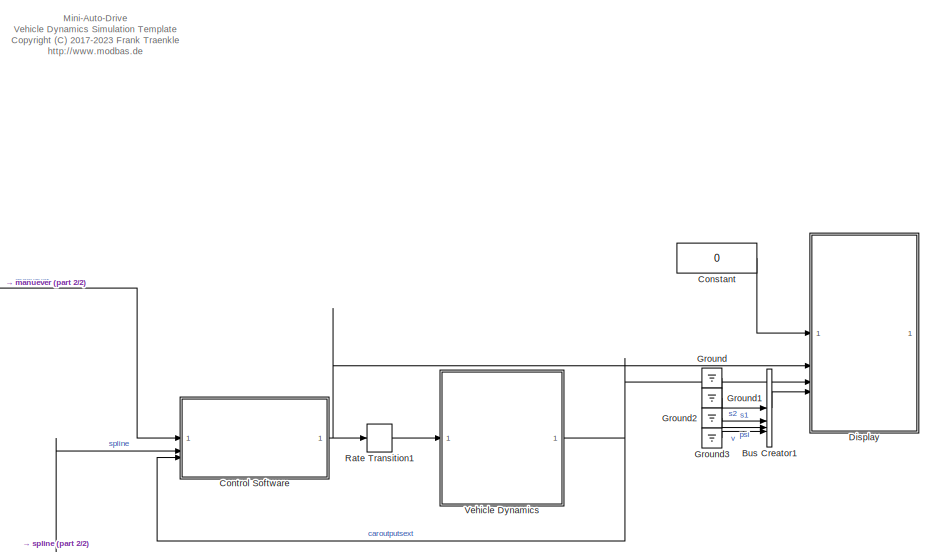
[diagram: root canvas - part 1/2, right side, full height]
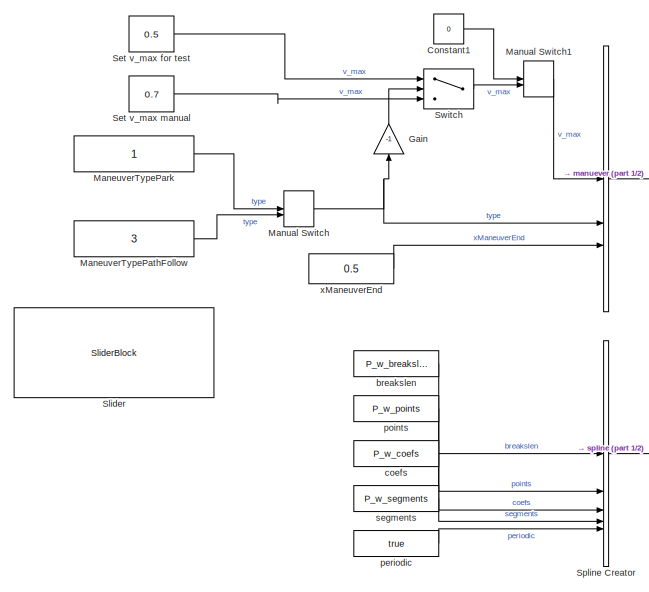
[diagram: root canvas - part 2/2, left side, full height]
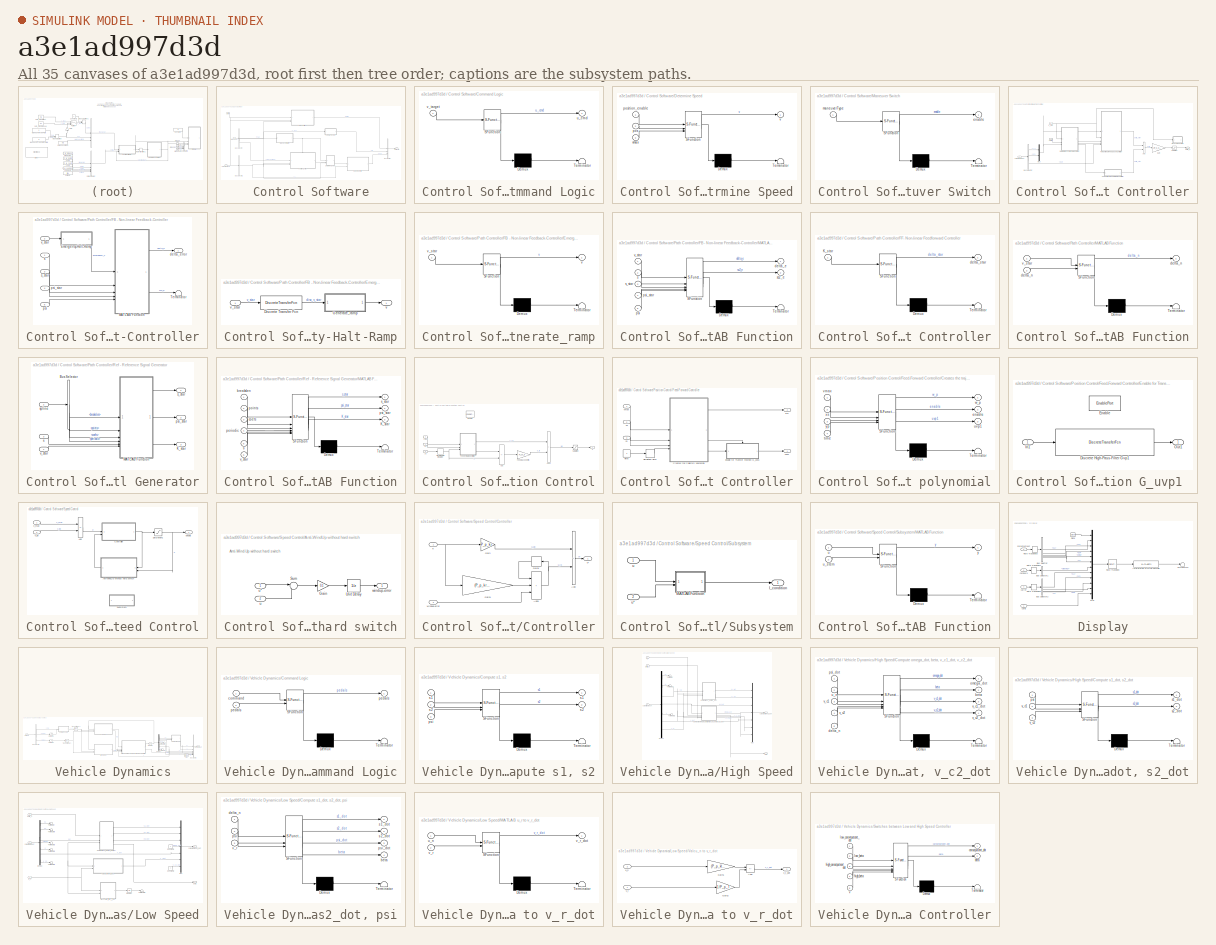
[diagram: thumbnail index - all 35 canvases of the model, root first then tree order]
MODEL slx_a3e1ad997d3d
KIND model
CONFIG AbsTol = auto
CONFIG EnableMultiTasking = off
CONFIG FixedStep = P_sim_dt
CONFIG InitFcn = s6_data
CONFIG MaxStep = auto
CONFIG MinStep = auto
CONFIG RelTol = 1e-3
CONFIG SampleTimeConstraint = Unconstrained
CONFIG SolverName = ode4
CONFIG StartTime = 0.0
CONFIG StopTime = inf
BLOCK [BusCreator]  
  DisplayOption = bar
  InheritFromInputs = on
  Inputs = 3
  NameLocation = right
BLOCK [BusCreator] Bus Creator1
  DisplayOption = bar
  InheritFromInputs = on
  Inputs = 4
BLOCK [Constant] Constant
  Value = 0
BLOCK [Constant] Constant1
  Value = 0
BLOCK [SubSystem] Control Software
  SystemSampleTime = P_p_TA
  TreatAsAtomicUnit = on
BLOCK [BusCreator] Control Software/Bus Creator
  DisplayOption = bar
  InheritFromInputs = on
  Inputs = 3
BLOCK [BusSelector] Control Software/Bus Selector
  OutputSignals = v_max,type,xManeuverEnd
BLOCK [BusSelector] Control Software/Bus Selector1
  OutputSignals = v
BLOCK [SubSystem] Control Software/Command Logic
  ErrorFcn = Stateflow.Translate.translate
  LibrarySourceBlock = simulink/User-Defined\nFunctions/MATLAB Function
  PermitHierarchicalResolution = ExplicitOnly
  SFBlockType = MATLAB Function
  TreatAsAtomicUnit = on
BLOCK [Demux] Control Software/Command Logic/ Demux 
  Outputs = 1
BLOCK [S-Function] Control Software/Command Logic/ SFunction 
  EnableBusSupport = on
  FunctionName = sf_sfun
  PortCounts = [1 2]
  SFcnIsStateOwnerBlock = off
  SFunctionDeploymentMode = off
  Tag = Stateflow S-Function 19
BLOCK [Terminator] Control Software/Command Logic/ Terminator 
BLOCK [Outport] Control Software/Command Logic/u_cmd
BLOCK [Inport] Control Software/Command Logic/v_target
BLOCK [SubSystem] Control Software/Determine Speed
  ErrorFcn = Stateflow.Translate.translate
  LibrarySourceBlock = simulink/User-Defined\nFunctions/MATLAB Function
  PermitHierarchicalResolution = ExplicitOnly
  SFBlockType = MATLAB Function
  TreatAsAtomicUnit = on
BLOCK [Demux] Control Software/Determine Speed/ Demux 
  Outputs = 1
BLOCK [S-Function] Control Software/Determine Speed/ SFunction 
  EnableBusSupport = on
  FunctionName = sf_sfun
  PortCounts = [3 2]
  SFcnIsStateOwnerBlock = off
  SFunctionDeploymentMode = off
  Tag = Stateflow S-Function 22
BLOCK [Terminator] Control Software/Determine Speed/ Terminator 
BLOCK [Inport] Control Software/Determine Speed/pos
  Port = 2
BLOCK [Inport] Control Software/Determine Speed/position_enable
BLOCK [Outport] Control Software/Determine Speed/v
BLOCK [Inport] Control Software/Determine Speed/vmax
  Port = 3
BLOCK [SubSystem] Control Software/Maneuver Switch
  ErrorFcn = Stateflow.Translate.translate
  LibrarySourceBlock = simulink/User-Defined\nFunctions/MATLAB Function
  PermitHierarchicalResolution = ExplicitOnly
  SFBlockType = MATLAB Function
  TreatAsAtomicUnit = on
BLOCK [Demux] Control Software/Maneuver Switch/ Demux 
  Outputs = 1
BLOCK [S-Function] Control Software/Maneuver Switch/ SFunction 
  EnableBusSupport = on
  FunctionName = sf_sfun
  PortCounts = [1 2]
  SFcnIsStateOwnerBlock = off
  SFunctionDeploymentMode = off
  Tag = Stateflow S-Function 21
BLOCK [Terminator] Control Software/Maneuver Switch/ Terminator 
BLOCK [Outport] Control Software/Maneuver Switch/enable
BLOCK [Inport] Control Software/Maneuver Switch/maneuverType
BLOCK [SubSystem] Control Software/Path Controller
BLOCK [Sum] Control Software/Path Controller/Add
  IconShape = rectangular
BLOCK [BusSelector] Control Software/Path Controller/Bus Selector
  OutputSignals = s1,s2,psi
BLOCK [SubSystem] Control Software/Path Controller/FB - Non-linear Feedback-Controller
BLOCK [SubSystem] Control Software/Path Controller/FB - Non-linear Feedback-Controller/Emergency-Halt-Ramp
BLOCK [DiscreteTransferFcn] Control Software/Path Controller/FB - Non-linear Feedback-Controller/Emergency-Halt-Ramp/Discrete Transfer Fcn
  Commented = through
  Denominator = [1 1]
  InputPortMap = u0
BLOCK [SubSystem] Control Software/Path Controller/FB - Non-linear Feedback-Controller/Emergency-Halt-Ramp/Generate_ramp
  ErrorFcn = Stateflow.Translate.translate
  LibrarySourceBlock = simulink/User-Defined\nFunctions/MATLAB Function
  PermitHierarchicalResolution = ExplicitOnly
  SFBlockType = MATLAB Function
  TreatAsAtomicUnit = on
BLOCK [Demux] Control Software/Path Controller/FB - Non-linear Feedback-Controller/Emergency-Halt-Ramp/Generate_ramp/ Demux 
  Outputs = 1
BLOCK [S-Function] Control Software/Path Controller/FB - Non-linear Feedback-Controller/Emergency-Halt-Ramp/Generate_ramp/ SFunction 
  EnableBusSupport = on
  FunctionName = sf_sfun
  PortCounts = [1 2]
  SFcnIsStateOwnerBlock = off
  SFunctionDeploymentMode = off
  Tag = Stateflow S-Function 2
BLOCK [Terminator] Control Software/Path Controller/FB - Non-linear Feedback-Controller/Emergency-Halt-Ramp/Generate_ramp/ Terminator 
BLOCK [Outport] Control Software/Path Controller/FB - Non-linear Feedback-Controller/Emergency-Halt-Ramp/Generate_ramp/v
BLOCK [Inport] Control Software/Path Controller/FB - Non-linear Feedback-Controller/Emergency-Halt-Ramp/Generate_ramp/v_star
BLOCK [Outport] Control Software/Path Controller/FB - Non-linear Feedback-Controller/Emergency-Halt-Ramp/v
BLOCK [Inport] Control Software/Path Controller/FB - Non-linear Feedback-Controller/Emergency-Halt-Ramp/v_star
BLOCK [SubSystem] Control Software/Path Controller/FB - Non-linear Feedback-Controller/MATLAB Function
  ErrorFcn = Stateflow.Translate.translate
  LibrarySourceBlock = simulink/User-Defined\nFunctions/MATLAB Function
  PermitHierarchicalResolution = ExplicitOnly
  SFBlockType = MATLAB Function
  TreatAsAtomicUnit = on
BLOCK [Demux] Control Software/Path Controller/FB - Non-linear Feedback-Controller/MATLAB Function/ Demux 
  Outputs = 1
BLOCK [S-Function] Control Software/Path Controller/FB - Non-linear Feedback-Controller/MATLAB Function/ SFunction 
  EnableBusSupport = on
  FunctionName = sf_sfun
  Parameters = P_p_Tw,P_p_l
  PortCounts = [5 3]
  SFcnIsStateOwnerBlock = off
  SFunctionDeploymentMode = off
  Tag = Stateflow S-Function 27
BLOCK [Terminator] Control Software/Path Controller/FB - Non-linear Feedback-Controller/MATLAB Function/ Terminator 
BLOCK [Outport] Control Software/Path Controller/FB - Non-linear Feedback-Controller/MATLAB Function/delta_e
BLOCK [Inport] Control Software/Path Controller/FB - Non-linear Feedback-Controller/MATLAB Function/psi
  Port = 5
BLOCK [Inport] Control Software/Path Controller/FB - Non-linear Feedback-Controller/MATLAB Function/psi_star
  Port = 4
BLOCK [Inport] Control Software/Path Controller/FB - Non-linear Feedback-Controller/MATLAB Function/s
  Port = 2
BLOCK [Inport] Control Software/Path Controller/FB - Non-linear Feedback-Controller/MATLAB Function/s_star
  Port = 3
BLOCK [Outport] Control Software/Path Controller/FB - Non-linear Feedback-Controller/MATLAB Function/sc2_e
  Port = 2
BLOCK [Inport] Control Software/Path Controller/FB - Non-linear Feedback-Controller/MATLAB Function/v_star
BLOCK [Terminator] Control Software/Path Controller/FB - Non-linear Feedback-Controller/Terminator
BLOCK [Outport] Control Software/Path Controller/FB - Non-linear Feedback-Controller/delta_error
BLOCK [Inport] Control Software/Path Controller/FB - Non-linear Feedback-Controller/psi
  Port = 5
BLOCK [Inport] Control Software/Path Controller/FB - Non-linear Feedback-Controller/psi_star
  Port = 4
BLOCK [Inport] Control Software/Path Controller/FB - Non-linear Feedback-Controller/s
BLOCK [Inport] Control Software/Path Controller/FB - Non-linear Feedback-Controller/s_star
  Port = 3
BLOCK [Inport] Control Software/Path Controller/FB - Non-linear Feedback-Controller/v_star
  Port = 2
BLOCK [SubSystem] Control Software/Path Controller/FF- Non-linear Feedforward Controller
  ErrorFcn = Stateflow.Translate.translate
  LibrarySourceBlock = simulink/User-Defined\nFunctions/MATLAB Function
  PermitHierarchicalResolution = ExplicitOnly
  SFBlockType = MATLAB Function
  TreatAsAtomicUnit = on
BLOCK [Demux] Control Software/Path Controller/FF- Non-linear Feedforward Controller/ Demux 
  Outputs = 1
BLOCK [S-Function] Control Software/Path Controller/FF- Non-linear Feedforward Controller/ SFunction 
  EnableBusSupport = on
  FunctionName = sf_sfun
  Parameters = P_p_l
  PortCounts = [1 2]
  SFcnIsStateOwnerBlock = off
  SFunctionDeploymentMode = off
  Tag = Stateflow S-Function 26
BLOCK [Terminator] Control Software/Path Controller/FF- Non-linear Feedforward Controller/ Terminator 
BLOCK [Inport] Control Software/Path Controller/FF- Non-linear Feedforward Controller/K_star
BLOCK [Outport] Control Software/Path Controller/FF- Non-linear Feedforward Controller/delta_star
BLOCK [Gain] Control Software/Path Controller/Gain
  Gain = 1/P_p_delta_max
BLOCK [SubSystem] Control Software/Path Controller/MATLAB Function
  Commented = on
  ErrorFcn = Stateflow.Translate.translate
  LibrarySourceBlock = simulink/User-Defined\nFunctions/MATLAB Function
  PermitHierarchicalResolution = ExplicitOnly
  SFBlockType = MATLAB Function
  TreatAsAtomicUnit = on
BLOCK [Demux] Control Software/Path Controller/MATLAB Function/ Demux 
  Outputs = 1
BLOCK [S-Function] Control Software/Path Controller/MATLAB Function/ SFunction 
  EnableBusSupport = on
  FunctionName = sf_sfun
  PortCounts = [2 2]
  SFcnIsStateOwnerBlock = off
  SFunctionDeploymentMode = off
  Tag = Stateflow S-Function 1
BLOCK [Terminator] Control Software/Path Controller/MATLAB Function/ Terminator 
BLOCK [Outport] Control Software/Path Controller/MATLAB Function/delta_n
BLOCK [Inport] Control Software/Path Controller/MATLAB Function/delta_n 
  Port = 2
BLOCK [Inport] Control Software/Path Controller/MATLAB Function/v_star
BLOCK [Mux] Control Software/Path Controller/Mux
  DisplayOption = bar
  Inputs = 2
BLOCK [SubSystem] Control Software/Path Controller/Ref - Reference Signal Generator
BLOCK [BusSelector] Control Software/Path Controller/Ref - Reference Signal Generator/Bus Selector
  OutputSignals = breakslen,points,coefs,periodic
BLOCK [Outport] Control Software/Path Controller/Ref - Reference Signal Generator/K_star
  Port = 3
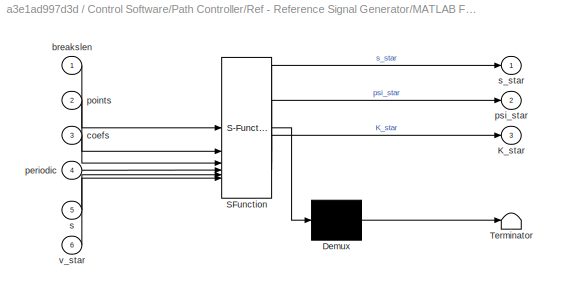
BLOCK [SubSystem] Control Software/Path Controller/Ref - Reference Signal Generator/MATLAB Function
  ErrorFcn = Stateflow.Translate.translate
  LibrarySourceBlock = simulink/User-Defined\nFunctions/MATLAB Function
  PermitHierarchicalResolution = ExplicitOnly
  SFBlockType = MATLAB Function
  TreatAsAtomicUnit = on
BLOCK [Demux] Control Software/Path Controller/Ref - Reference Signal Generator/MATLAB Function/ Demux 
  Outputs = 1
BLOCK [S-Function] Control Software/Path Controller/Ref - Reference Signal Generator/MATLAB Function/ SFunction 
  EnableBusSupport = on
  FunctionName = sf_sfun
  Parameters = P_p_Tt
  PortCounts = [6 4]
  SFcnIsStateOwnerBlock = off
  SFunctionDeploymentMode = off
  Tag = Stateflow S-Function 23
BLOCK [Terminator] Control Software/Path Controller/Ref - Reference Signal Generator/MATLAB Function/ Terminator 
BLOCK [Outport] Control Software/Path Controller/Ref - Reference Signal Generator/MATLAB Function/K_star
  Port = 3
BLOCK [Inport] Control Software/Path Controller/Ref - Reference Signal Generator/MATLAB Function/breakslen
BLOCK [Inport] Control Software/Path Controller/Ref - Reference Signal Generator/MATLAB Function/coefs
  Port = 3
BLOCK [Inport] Control Software/Path Controller/Ref - Reference Signal Generator/MATLAB Function/periodic
  Port = 4
BLOCK [Inport] Control Software/Path Controller/Ref - Reference Signal Generator/MATLAB Function/points
  Port = 2
BLOCK [Outport] Control Software/Path Controller/Ref - Reference Signal Generator/MATLAB Function/psi_star
  Port = 2
BLOCK [Inport] Control Software/Path Controller/Ref - Reference Signal Generator/MATLAB Function/s
  Port = 5
BLOCK [Outport] Control Software/Path Controller/Ref - Reference Signal Generator/MATLAB Function/s_star
BLOCK [Inport] Control Software/Path Controller/Ref - Reference Signal Generator/MATLAB Function/v_star
  Port = 6
BLOCK [Outport] Control Software/Path Controller/Ref - Reference Signal Generator/psi_star
  Port = 2
BLOCK [Inport] Control Software/Path Controller/Ref - Reference Signal Generator/s
  Port = 3
BLOCK [Outport] Control Software/Path Controller/Ref - Reference Signal Generator/s_star
BLOCK [Inport] Control Software/Path Controller/Ref - Reference Signal Generator/spline
  Port = 2
BLOCK [Inport] Control Software/Path Controller/Ref - Reference Signal Generator/v_star
BLOCK [Saturate] Control Software/Path Controller/Saturation
  LowerLimit = -1
  UpperLimit = 1
BLOCK [Inport] Control Software/Path Controller/caroutputsext
  Port = 2
BLOCK [Outport] Control Software/Path Controller/delta_n
BLOCK [Inport] Control Software/Path Controller/spline
BLOCK [Inport] Control Software/Path Controller/v_star
  Port = 3
BLOCK [SubSystem] Control Software/Position Control
BLOCK [Sum] Control Software/Position Control/Add
  IconShape = rectangular
  Inputs = +-
BLOCK [Sum] Control Software/Position Control/Add1
  IconShape = rectangular
BLOCK [DiscreteIntegrator] Control Software/Position Control/Discrete-Time Integrator
  ICPrevOutput = DiscIntNeverNeededParam
  ICPrevScaledInput = DiscIntNeverNeededParam
  InitialConditionSetting = Auto
  SampleTime = -1
BLOCK [EnablePort] Control Software/Position Control/Enable
  StatesWhenEnabling = reset
BLOCK [Gain] Control Software/Position Control/Feed-Back Control
  Gain = P_cx_k
BLOCK [SubSystem] Control Software/Position Control/Feed-Forward Controller
BLOCK [SubSystem] Control Software/Position Control/Feed-Forward Controller/Creates the trajectory polynomial
  ErrorFcn = Stateflow.Translate.translate
  LibrarySourceBlock = simulink/User-Defined\nFunctions/MATLAB Function
  PermitHierarchicalResolution = ExplicitOnly
  SFBlockType = MATLAB Function
  TreatAsAtomicUnit = on
BLOCK [Demux] Control Software/Position Control/Feed-Forward Controller/Creates the trajectory polynomial/ Demux 
  Outputs = 1
BLOCK [S-Function] Control Software/Position Control/Feed-Forward Controller/Creates the trajectory polynomial/ SFunction 
  EnableBusSupport = on
  FunctionName = sf_sfun
  Parameters = P_p_T,P_p_Ti,P_p_Tt,P_p_k,P_p_kr
  PortCounts = [4 4]
  SFcnIsStateOwnerBlock = off
  SFunctionDeploymentMode = off
  Tag = Stateflow S-Function 20
BLOCK [Terminator] Control Software/Position Control/Feed-Forward Controller/Creates the trajectory polynomial/ Terminator 
BLOCK [Outport] Control Software/Position Control/Feed-Forward Controller/Creates the trajectory polynomial/enable
  Port = 2
BLOCK [Inport] Control Software/Position Control/Feed-Forward Controller/Creates the trajectory polynomial/time
  Port = 4
BLOCK [Outport] Control Software/Position Control/Feed-Forward Controller/Creates the trajectory polynomial/uvp1
  Port = 3
BLOCK [Inport] Control Software/Position Control/Feed-Forward Controller/Creates the trajectory polynomial/vmax
BLOCK [Outport] Control Software/Position Control/Feed-Forward Controller/Creates the trajectory polynomial/w_p
BLOCK [Inport] Control Software/Position Control/Feed-Forward Controller/Creates the trajectory polynomial/xs
  Port = 2
BLOCK [Inport] Control Software/Position Control/Feed-Forward Controller/Creates the trajectory polynomial/yp
  Port = 3
BLOCK [SubSystem] Control Software/Position Control/Feed-Forward Controller/Enable for Transfer Function G_uvp1 
BLOCK [DiscreteTransferFcn] Control Software/Position Control/Feed-Forward Controller/Enable for Transfer Function G_uvp1 /Discrete High-Pass-Filter Gvp1
  Denominator = [(2*P_p_Ti+P_p_T) (P_p_T-2*P_p_Ti)]
  InputPortMap = u0
  Numerator = [2 -2]
BLOCK [EnablePort] Control Software/Position Control/Feed-Forward Controller/Enable for Transfer Function G_uvp1 /Enable
BLOCK [Inport] Control Software/Position Control/Feed-Forward Controller/Enable for Transfer Function G_uvp1 /In1
BLOCK [Outport] Control Software/Position Control/Feed-Forward Controller/Enable for Transfer Function G_uvp1 /Out1
BLOCK [DiscreteIntegrator] Control Software/Position Control/Feed-Forward Controller/Simulation Time
  ICPrevOutput = DiscIntNeverNeededParam
  ICPrevScaledInput = DiscIntNeverNeededParam
  InitialConditionSetting = Auto
  SampleTime = -1
BLOCK [Constant] Control Software/Position Control/Feed-Forward Controller/Time
BLOCK [Outport] Control Software/Position Control/Feed-Forward Controller/uvp1
BLOCK [Inport] Control Software/Position Control/Feed-Forward Controller/vmax
BLOCK [Outport] Control Software/Position Control/Feed-Forward Controller/wp
  Port = 2
BLOCK [Inport] Control Software/Position Control/Feed-Forward Controller/xs
  Port = 2
BLOCK [Inport] Control Software/Position Control/Feed-Forward Controller/yp
  Port = 3
BLOCK [Saturate] Control Software/Position Control/Saturation
  LowerLimit = -1
  UpperLimit = 1
BLOCK [Outport] Control Software/Position Control/u
BLOCK [Inport] Control Software/Position Control/vmax
  Port = 2
BLOCK [Inport] Control Software/Position Control/xs
BLOCK [Inport] Control Software/Position Control/yp
  Port = 3
BLOCK [SubSystem] Control Software/Speed Control
BLOCK [Sum] Control Software/Speed Control/Add
  IconShape = rectangular
  Inputs = +-
BLOCK [SubSystem] Control Software/Speed Control/Anti-WindUp without hard switch
BLOCK [Gain] Control Software/Speed Control/Anti-WindUp without hard switch/Gain
  Gain = 0.1
BLOCK [Sum] Control Software/Speed Control/Anti-WindUp without hard switch/Sum
  Inputs = |-+
BLOCK [UnitDelay] Control Software/Speed Control/Anti-WindUp without hard switch/Unit Delay
  HasFrameUpgradeWarning = on
  SampleTime = -1
BLOCK [Inport] Control Software/Speed Control/Anti-WindUp without hard switch/u
  Port = 2
BLOCK [Inport] Control Software/Speed Control/Anti-WindUp without hard switch/u*
BLOCK [Outport] Control Software/Speed Control/Anti-WindUp without hard switch/windup-error
BLOCK [SubSystem] Control Software/Speed Control/Controller
BLOCK [Sum] Control Software/Speed Control/Controller/Add
  IconShape = rectangular
BLOCK [Sum] Control Software/Speed Control/Controller/Add1
  IconShape = rectangular
  Inputs = +++
BLOCK [Delay] Control Software/Speed Control/Controller/Delay
  DelayLength = 1
  InputPortMap = u0
  NameLocation = top
  SampleTime = 0.02
BLOCK [Gain] Control Software/Speed Control/Controller/Gain
  Gain = P_p_kr
BLOCK [Gain] Control Software/Speed Control/Controller/Gain1
  Gain = (P_p_kr*P_p_TA) / P_p_Ti
BLOCK [Inport] Control Software/Speed Control/Controller/e
BLOCK [Outport] Control Software/Speed Control/Controller/u*
BLOCK [Inport] Control Software/Speed Control/Controller/windup-error
  Port = 2
BLOCK [Saturate] Control Software/Speed Control/Saturation1
  LowerLimit = -1
  UpperLimit = 1
BLOCK [SubSystem] Control Software/Speed Control/Subsystem
  Commented = on
  NameLocation = top
BLOCK [Outport] Control Software/Speed Control/Subsystem/I_condition
BLOCK [SubSystem] Control Software/Speed Control/Subsystem/MATLAB Function
  ErrorFcn = Stateflow.Translate.translate
  LibrarySourceBlock = simulink/User-Defined\nFunctions/MATLAB Function
  PermitHierarchicalResolution = ExplicitOnly
  SFBlockType = MATLAB Function
  TreatAsAtomicUnit = on
BLOCK [Demux] Control Software/Speed Control/Subsystem/MATLAB Function/ Demux 
  Outputs = 1
BLOCK [S-Function] Control Software/Speed Control/Subsystem/MATLAB Function/ SFunction 
  EnableBusSupport = on
  FunctionName = sf_sfun
  PortCounts = [2 2]
  SFcnIsStateOwnerBlock = off
  SFunctionDeploymentMode = off
  Tag = Stateflow S-Function 17
BLOCK [Terminator] Control Software/Speed Control/Subsystem/MATLAB Function/ Terminator 
BLOCK [Inport] Control Software/Speed Control/Subsystem/MATLAB Function/u
BLOCK [Inport] Control Software/Speed Control/Subsystem/MATLAB Function/u_stern
  Port = 2
BLOCK [Outport] Control Software/Speed Control/Subsystem/MATLAB Function/y
BLOCK [Inport] Control Software/Speed Control/Subsystem/u
BLOCK [Inport] Control Software/Speed Control/Subsystem/u*
  Port = 2
BLOCK [Outport] Control Software/Speed Control/pedals
BLOCK [Inport] Control Software/Speed Control/v_ist
  Port = 2
BLOCK [Inport] Control Software/Speed Control/v_max
BLOCK [Outport] Control Software/carinputs
BLOCK [Inport] Control Software/caroutputsext
  Port = 3
BLOCK [Inport] Control Software/maneuver
BLOCK [Inport] Control Software/spline
  Port = 2
BLOCK [SubSystem] Display
  AncestorBlock = mad_lib_template/Display
  LibrarySourceBlock = mad_lib_template/Display
BLOCK [BusSelector] Display/Bus Selector
  OutputSignals = s1,s2,psi,beta,v
BLOCK [BusSelector] Display/Bus Selector1
  OutputSignals = steering
BLOCK [BusSelector] Display/Bus Selector2
  OutputSignals = s1,s2,psi,v
BLOCK [Clock] Display/Clock
BLOCK [MATLABFcn] Display/Interpreted MATLAB Function
  MATLABFcn = mbc_car_display(u(1),u(2),u(3),u(4),u(5), u(6), u(7), u(8), u(9), u(10), u(11), u(12))
BLOCK [Mux] Display/Mux
  DisplayOption = bar
  Inputs = 12
BLOCK [RateTransition] Display/Rate Transition
  OutPortSampleTime = P_display_dt
BLOCK [RateTransition] Display/Rate Transition3
BLOCK [RateTransition] Display/Rate Transition4
BLOCK [RateTransition] Display/Rate Transition5
BLOCK [Terminator] Display/Terminator6
BLOCK [Inport] Display/carid
  SamplingMode = Sample based
  SignalType = real
BLOCK [Inport] Display/carinputs
  Port = 2
  SamplingMode = Sample based
  SignalType = real
BLOCK [Inport] Display/caroutputsext
  Port = 3
  SamplingMode = Sample based
  SignalType = real
BLOCK [Inport] Display/carref
  Port = 4
  SamplingMode = Sample based
  SignalType = real
BLOCK [Gain] Gain
  Gain = -1
  NameLocation = right
BLOCK [Ground] Ground
BLOCK [Ground] Ground1
BLOCK [Ground] Ground2
BLOCK [Ground] Ground3
BLOCK [Constant] ManeuverTypePark
  SampleTime = -1
BLOCK [Constant] ManeuverTypePathFollow
  SampleTime = -1
  Value = 3
BLOCK [ManualSwitch] Manual Switch
  CurrentSetting = 0
BLOCK [ManualSwitch] Manual Switch1
  CurrentSetting = 0
BLOCK [RateTransition] Rate Transition1
BLOCK [Constant] Set v_max for test
  SampleTime = -1
  Value = 0.5
BLOCK [Constant] Set v_max manual
  SampleTime = -1
  Value = 0.7
BLOCK [SliderBlock] Slider
  ScaleMax = 2.51
  ScaleMin = -2.51
BLOCK [BusCreator] Spline Creator
  DisplayOption = bar
  InheritFromInputs = on
  Inputs = breakslen,points,coefs,segments,periodic
  OutDataTypeStr = Bus: SPLINE
BLOCK [Switch] Switch
  Criteria = u2 > Threshold
  InputSameDT = off
  SaturateOnIntegerOverflow = off
  Threshold = -3
BLOCK [SubSystem] Vehicle Dynamics
BLOCK [BusCreator] Vehicle Dynamics/Bus Creator2
  DisplayOption = bar
  InheritFromInputs = on
  Inputs = 7
  OutDataTypeStr = Bus: CAROUTPUTSEXT
BLOCK [BusSelector] Vehicle Dynamics/Bus Selector1
  OutputSignals = cmd,pedals,steering
BLOCK [SubSystem] Vehicle Dynamics/Command Logic
  ErrorFcn = Stateflow.Translate.translate
  LibrarySourceBlock = simulink/User-Defined\nFunctions/MATLAB Function
  PermitHierarchicalResolution = ExplicitOnly
  SFBlockType = MATLAB Function
  TreatAsAtomicUnit = on
BLOCK [Demux] Vehicle Dynamics/Command Logic/ Demux 
  Outputs = 1
BLOCK [S-Function] Vehicle Dynamics/Command Logic/ SFunction 
  EnableBusSupport = on
  FunctionName = sf_sfun
  PortCounts = [2 2]
  SFcnIsStateOwnerBlock = off
  SFunctionDeploymentMode = off
  Tag = Stateflow S-Function 25
BLOCK [Terminator] Vehicle Dynamics/Command Logic/ Terminator 
BLOCK [Inport] Vehicle Dynamics/Command Logic/command
BLOCK [Outport] Vehicle Dynamics/Command Logic/pedals
BLOCK [Inport] Vehicle Dynamics/Command Logic/pedals 
  Port = 2
BLOCK [SubSystem] Vehicle Dynamics/Compute s1, s2
  ErrorFcn = Stateflow.Translate.translate
  LibrarySourceBlock = simulink/User-Defined\nFunctions/MATLAB Function
  PermitHierarchicalResolution = ExplicitOnly
  SFBlockType = MATLAB Function
  TreatAsAtomicUnit = on
BLOCK [Demux] Vehicle Dynamics/Compute s1, s2/ Demux 
  Outputs = 1
BLOCK [S-Function] Vehicle Dynamics/Compute s1, s2/ SFunction 
  EnableBusSupport = on
  FunctionName = sf_sfun
  Parameters = P_p_lr
  PortCounts = [3 3]
  SFcnIsStateOwnerBlock = off
  SFunctionDeploymentMode = off
  Tag = Stateflow S-Function 42
BLOCK [Terminator] Vehicle Dynamics/Compute s1, s2/ Terminator 
BLOCK [Inport] Vehicle Dynamics/Compute s1, s2/psi
  Port = 3
BLOCK [Outport] Vehicle Dynamics/Compute s1, s2/s1
BLOCK [Inport] Vehicle Dynamics/Compute s1, s2/s1 
BLOCK [Outport] Vehicle Dynamics/Compute s1, s2/s2
  Port = 2
BLOCK [Inport] Vehicle Dynamics/Compute s1, s2/s2 
  Port = 2
BLOCK [Demux] Vehicle Dynamics/Demux1
  Outputs = 7
BLOCK [SubSystem] Vehicle Dynamics/High Speed
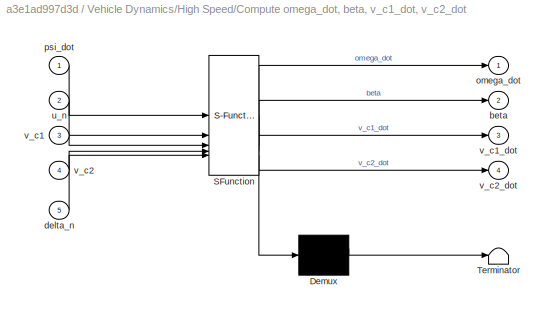
BLOCK [SubSystem] Vehicle Dynamics/High Speed/Compute omega_dot, beta, v_c1_dot, v_c2_dot
  ErrorFcn = Stateflow.Translate.translate
  LibrarySourceBlock = simulink/User-Defined\nFunctions/MATLAB Function
  PermitHierarchicalResolution = ExplicitOnly
  SFBlockType = MATLAB Function
  TreatAsAtomicUnit = on
BLOCK [Demux] Vehicle Dynamics/High Speed/Compute omega_dot, beta, v_c1_dot, v_c2_dot/ Demux 
  Outputs = 1
BLOCK [S-Function] Vehicle Dynamics/High Speed/Compute omega_dot, beta, v_c1_dot, v_c2_dot/ SFunction 
  EnableBusSupport = on
  FunctionName = sf_sfun
  Parameters = P_p_Bf,P_p_Br,P_p_Cf,P_p_Cr,P_p_Df,P_p_Dr,P_p_Ef,P_p_Er,P_p_J,P_p_T,P_p_delta_max,P_p_k,P_p_lf,P_p_lr,P_p_m
  PortCounts = [5 5]
  SFcnIsStateOwnerBlock = off
  SFunctionDeploymentMode = off
  Tag = Stateflow S-Function 35
BLOCK [Terminator] Vehicle Dynamics/High Speed/Compute omega_dot, beta, v_c1_dot, v_c2_dot/ Terminator 
BLOCK [Outport] Vehicle Dynamics/High Speed/Compute omega_dot, beta, v_c1_dot, v_c2_dot/beta
  Port = 2
BLOCK [Inport] Vehicle Dynamics/High Speed/Compute omega_dot, beta, v_c1_dot, v_c2_dot/delta_n
  Port = 5
BLOCK [Outport] Vehicle Dynamics/High Speed/Compute omega_dot, beta, v_c1_dot, v_c2_dot/omega_dot
BLOCK [Inport] Vehicle Dynamics/High Speed/Compute omega_dot, beta, v_c1_dot, v_c2_dot/psi_dot
BLOCK [Inport] Vehicle Dynamics/High Speed/Compute omega_dot, beta, v_c1_dot, v_c2_dot/u_n
  Port = 2
BLOCK [Inport] Vehicle Dynamics/High Speed/Compute omega_dot, beta, v_c1_dot, v_c2_dot/v_c1
  Port = 3
BLOCK [Outport] Vehicle Dynamics/High Speed/Compute omega_dot, beta, v_c1_dot, v_c2_dot/v_c1_dot
  Port = 3
BLOCK [Inport] Vehicle Dynamics/High Speed/Compute omega_dot, beta, v_c1_dot, v_c2_dot/v_c2
  Port = 4
BLOCK [Outport] Vehicle Dynamics/High Speed/Compute omega_dot, beta, v_c1_dot, v_c2_dot/v_c2_dot
  Port = 4
BLOCK [SubSystem] Vehicle Dynamics/High Speed/Compute s1_dot, s2_dot
  ErrorFcn = Stateflow.Translate.translate
  LibrarySourceBlock = simulink/User-Defined\nFunctions/MATLAB Function
  PermitHierarchicalResolution = ExplicitOnly
  SFBlockType = MATLAB Function
  TreatAsAtomicUnit = on
BLOCK [Demux] Vehicle Dynamics/High Speed/Compute s1_dot, s2_dot/ Demux 
  Outputs = 1
BLOCK [S-Function] Vehicle Dynamics/High Speed/Compute s1_dot, s2_dot/ SFunction 
  EnableBusSupport = on
  FunctionName = sf_sfun
  PortCounts = [3 3]
  SFcnIsStateOwnerBlock = off
  SFunctionDeploymentMode = off
  Tag = Stateflow S-Function 38
BLOCK [Terminator] Vehicle Dynamics/High Speed/Compute s1_dot, s2_dot/ Terminator 
BLOCK [Inport] Vehicle Dynamics/High Speed/Compute s1_dot, s2_dot/psi
BLOCK [Outport] Vehicle Dynamics/High Speed/Compute s1_dot, s2_dot/s1_dot
BLOCK [Outport] Vehicle Dynamics/High Speed/Compute s1_dot, s2_dot/s2_dot
  Port = 2
BLOCK [Inport] Vehicle Dynamics/High Speed/Compute s1_dot, s2_dot/v_c1
  Port = 2
BLOCK [Inport] Vehicle Dynamics/High Speed/Compute s1_dot, s2_dot/v_c2
  Port = 3
BLOCK [Demux] Vehicle Dynamics/High Speed/Demux
  Outputs = 7
BLOCK [Mux] Vehicle Dynamics/High Speed/Mux
  DisplayOption = bar
  Inputs = 7
BLOCK [Terminator] Vehicle Dynamics/High Speed/Terminator
BLOCK [Terminator] Vehicle Dynamics/High Speed/Terminator1
BLOCK [Terminator] Vehicle Dynamics/High Speed/Terminator2
BLOCK [Outport] Vehicle Dynamics/High Speed/beta
  Port = 2
BLOCK [Inport] Vehicle Dynamics/High Speed/caroutputsext
BLOCK [Outport] Vehicle Dynamics/High Speed/caroutputsext_dot
BLOCK [Inport] Vehicle Dynamics/High Speed/delta_n
  Port = 3
BLOCK [Inport] Vehicle Dynamics/High Speed/u_n
  Port = 2
BLOCK [Integrator] Vehicle Dynamics/Integrator1
  InitialCondition = [P_p_s1_start; P_p_s2_start; 0; 0; 0; 0; 0]
BLOCK [SubSystem] Vehicle Dynamics/Low Speed
BLOCK [SubSystem] Vehicle Dynamics/Low Speed/Compute s1_dot, s2_dot, psi
  ErrorFcn = Stateflow.Translate.translate
  LibrarySourceBlock = simulink/User-Defined\nFunctions/MATLAB Function
  PermitHierarchicalResolution = ExplicitOnly
  SFBlockType = MATLAB Function
  TreatAsAtomicUnit = on
BLOCK [Demux] Vehicle Dynamics/Low Speed/Compute s1_dot, s2_dot, psi/ Demux 
  Outputs = 1
BLOCK [S-Function] Vehicle Dynamics/Low Speed/Compute s1_dot, s2_dot, psi/ SFunction 
  EnableBusSupport = on
  FunctionName = sf_sfun
  Parameters = P_p_delta_max,P_p_l,P_p_lr
  PortCounts = [3 5]
  SFcnIsStateOwnerBlock = off
  SFunctionDeploymentMode = off
  Tag = Stateflow S-Function 43
BLOCK [Terminator] Vehicle Dynamics/Low Speed/Compute s1_dot, s2_dot, psi/ Terminator 
BLOCK [Outport] Vehicle Dynamics/Low Speed/Compute s1_dot, s2_dot, psi/beta
  Port = 4
BLOCK [Inport] Vehicle Dynamics/Low Speed/Compute s1_dot, s2_dot, psi/delta_n
BLOCK [Inport] Vehicle Dynamics/Low Speed/Compute s1_dot, s2_dot, psi/psi
  Port = 2
BLOCK [Outport] Vehicle Dynamics/Low Speed/Compute s1_dot, s2_dot, psi/psi_dot
  Port = 3
BLOCK [Outport] Vehicle Dynamics/Low Speed/Compute s1_dot, s2_dot, psi/s1_dot
BLOCK [Outport] Vehicle Dynamics/Low Speed/Compute s1_dot, s2_dot, psi/s2_dot
  Port = 2
BLOCK [Inport] Vehicle Dynamics/Low Speed/Compute s1_dot, s2_dot, psi/v_r
  Port = 3
BLOCK [Constant] Vehicle Dynamics/Low Speed/Constant1
  Value = 0
BLOCK [Constant] Vehicle Dynamics/Low Speed/Constant2
  Value = 0
BLOCK [Demux] Vehicle Dynamics/Low Speed/Demux
  Outputs = 7
BLOCK [Integrator] Vehicle Dynamics/Low Speed/Integrator
BLOCK [SubSystem] Vehicle Dynamics/Low Speed/MATLAB u_r to v_r_dot
  ErrorFcn = Stateflow.Translate.translate
  LibrarySourceBlock = simulink/User-Defined\nFunctions/MATLAB Function
  PermitHierarchicalResolution = ExplicitOnly
  SFBlockType = MATLAB Function
  TreatAsAtomicUnit = on
BLOCK [Demux] Vehicle Dynamics/Low Speed/MATLAB u_r to v_r_dot/ Demux 
  Outputs = 1
BLOCK [S-Function] Vehicle Dynamics/Low Speed/MATLAB u_r to v_r_dot/ SFunction 
  EnableBusSupport = on
  FunctionName = sf_sfun
  Parameters = P_p_T,P_p_k
  PortCounts = [2 2]
  SFcnIsStateOwnerBlock = off
  SFunctionDeploymentMode = off
  Tag = Stateflow S-Function 41
BLOCK [Terminator] Vehicle Dynamics/Low Speed/MATLAB u_r to v_r_dot/ Terminator 
BLOCK [Inport] Vehicle Dynamics/Low Speed/MATLAB u_r to v_r_dot/u_n
BLOCK [Inport] Vehicle Dynamics/Low Speed/MATLAB u_r to v_r_dot/v_r
  Port = 2
BLOCK [Outport] Vehicle Dynamics/Low Speed/MATLAB u_r to v_r_dot/v_r_dot
BLOCK [Mux] Vehicle Dynamics/Low Speed/Mux
  DisplayOption = bar
  Inputs = 7
BLOCK [Terminator] Vehicle Dynamics/Low Speed/Terminator
BLOCK [Terminator] Vehicle Dynamics/Low Speed/Terminator2
BLOCK [Terminator] Vehicle Dynamics/Low Speed/Terminator3
BLOCK [Terminator] Vehicle Dynamics/Low Speed/Terminator4
BLOCK [Terminator] Vehicle Dynamics/Low Speed/Terminator5
BLOCK [Terminator] Vehicle Dynamics/Low Speed/Terminator6
BLOCK [SubSystem] Vehicle Dynamics/Low Speed/Valc u_n to v_r_dot
BLOCK [Sum] Vehicle Dynamics/Low Speed/Valc u_n to v_r_dot/Add
  IconShape = rectangular
  Inputs = +-
BLOCK [Gain] Vehicle Dynamics/Low Speed/Valc u_n to v_r_dot/Gain1
  Gain = (P_p_k/P_p_T)
BLOCK [Gain] Vehicle Dynamics/Low Speed/Valc u_n to v_r_dot/Gain2
  Gain = 1/P_p_T
BLOCK [Inport] Vehicle Dynamics/Low Speed/Valc u_n to v_r_dot/u_n
  Port = 2
BLOCK [Inport] Vehicle Dynamics/Low Speed/Valc u_n to v_r_dot/v_r
BLOCK [Outport] Vehicle Dynamics/Low Speed/Valc u_n to v_r_dot/v_r_dot
BLOCK [Outport] Vehicle Dynamics/Low Speed/beta
  Port = 2
BLOCK [Inport] Vehicle Dynamics/Low Speed/caroutputsext
BLOCK [Outport] Vehicle Dynamics/Low Speed/caroutputsext_dot
BLOCK [Inport] Vehicle Dynamics/Low Speed/delta_n
  Port = 3
BLOCK [Inport] Vehicle Dynamics/Low Speed/u_n
  Port = 2
BLOCK [Saturate] Vehicle Dynamics/Saturation2
  LowerLimit = -1
  UpperLimit = 1
BLOCK [Saturate] Vehicle Dynamics/Saturation3
  LowerLimit = -1
  UpperLimit = 1
BLOCK [SubSystem] Vehicle Dynamics/Switches between Low and High Speed Controller
  ErrorFcn = Stateflow.Translate.translate
  LibrarySourceBlock = simulink/User-Defined\nFunctions/MATLAB Function
  PermitHierarchicalResolution = ExplicitOnly
  SFBlockType = MATLAB Function
  TreatAsAtomicUnit = on
BLOCK [Demux] Vehicle Dynamics/Switches between Low and High Speed Controller/ Demux 
  Outputs = 1
BLOCK [S-Function] Vehicle Dynamics/Switches between Low and High Speed Controller/ SFunction 
  EnableBusSupport = on
  FunctionName = sf_sfun
  PortCounts = [5 3]
  SFcnIsStateOwnerBlock = off
  SFunctionDeploymentMode = off
  Tag = Stateflow S-Function 24
BLOCK [Terminator] Vehicle Dynamics/Switches between Low and High Speed Controller/ Terminator 
BLOCK [Outport] Vehicle Dynamics/Switches between Low and High Speed Controller/beta
  Port = 2
BLOCK [Outport] Vehicle Dynamics/Switches between Low and High Speed Controller/caroutputsext_dot
BLOCK [Inport] Vehicle Dynamics/Switches between Low and High Speed Controller/high_beta
  Port = 4
BLOCK [Inport] Vehicle Dynamics/Switches between Low and High Speed Controller/high_caroutputsext_dot
  Port = 3
BLOCK [Inport] Vehicle Dynamics/Switches between Low and High Speed Controller/low_beta
  Port = 2
BLOCK [Inport] Vehicle Dynamics/Switches between Low and High Speed Controller/low_caroutputsext_dot
BLOCK [Inport] Vehicle Dynamics/Switches between Low and High Speed Controller/v
  Port = 5
BLOCK [Terminator] Vehicle Dynamics/Terminator2
BLOCK [Terminator] Vehicle Dynamics/Terminator3
BLOCK [Constant] Vehicle Dynamics/Time1
  Value = uint8(0)
BLOCK [TransportDelay] Vehicle Dynamics/Transport Delay2
  DelayTime = P_p_Tt
BLOCK [TransportDelay] Vehicle Dynamics/Transport Delay3
  DelayTime = P_p_Tt
BLOCK [Inport] Vehicle Dynamics/carinputs
BLOCK [Outport] Vehicle Dynamics/caroutputsext
  VectorParamsAs1DForOutWhenUnconnected = off
BLOCK [Constant] breakslen
  Value = P_w_breakslen
BLOCK [Constant] coefs
  Value = P_w_coefs
BLOCK [Constant] periodic
  Value = true
BLOCK [Constant] points
  Value = P_w_points
BLOCK [Constant] segments
  Value = P_w_segments
BLOCK [Constant] xManeuverEnd
  Value = 0.5
ANNOTATION (root): Mini-Auto-Drive Vehicle Dynamics Simulation Template <copyright redacted>
ANNOTATION Control Software/Speed Control/Anti-WindUp without hard switch: Anti-Wind-Up without hard switch
LINE  :1 -> Control Software:1
LINE Bus Creator1:1 -> Display:4
LINE Constant1:1 -> Manual Switch1:1
LINE Constant:1 -> Display:1
LINE Control Software/Bus Creator:1 -> Control Software/carinputs:1
NET Control Software/Bus Selector1:1 -> Control Software/Position Control:3, Control Software/Speed Control:2
NET Control Software/Bus Selector:1 -> Control Software/Command Logic:1, Control Software/Determine Speed:3, Control Software/Path Controller:3, Control Software/Position Control:2
LINE Control Software/Bus Selector:2 -> Control Software/Maneuver Switch:1
LINE Control Software/Bus Selector:3 -> Control Software/Position Control:1
LINE Control Software/Command Logic:1 -> Control Software/Bus Creator:2
LINE Control Software/Determine Speed:1 -> Control Software/Speed Control:1
NET Control Software/Maneuver Switch:1 -> Control Software/Determine Speed:1, Control Software/Position Control:enable
LINE Control Software/Path Controller/Add:1 -> Control Software/Path Controller/Gain:1
LINE Control Software/Path Controller/Bus Selector:1 -> Control Software/Path Controller/Mux:1
LINE Control Software/Path Controller/Bus Selector:2 -> Control Software/Path Controller/Mux:2
LINE Control Software/Path Controller/Bus Selector:3 -> Control Software/Path Controller/FB - Non-linear Feedback-Controller:5
LINE Control Software/Path Controller/FB - Non-linear Feedback-Controller/Emergency-Halt-Ramp/Discrete Transfer Fcn:1 -> Control Software/Path Controller/FB - Non-linear Feedback-Controller/Emergency-Halt-Ramp/Generate_ramp:1
LINE Control Software/Path Controller/FB - Non-linear Feedback-Controller/Emergency-Halt-Ramp/Generate_ramp:1 -> Control Software/Path Controller/FB - Non-linear Feedback-Controller/Emergency-Halt-Ramp/v:1
LINE Control Software/Path Controller/FB - Non-linear Feedback-Controller/Emergency-Halt-Ramp/v_star:1 -> Control Software/Path Controller/FB - Non-linear Feedback-Controller/Emergency-Halt-Ramp/Discrete Transfer Fcn:1
LINE Control Software/Path Controller/FB - Non-linear Feedback-Controller/Emergency-Halt-Ramp:1 -> Control Software/Path Controller/FB - Non-linear Feedback-Controller/MATLAB Function:1
LINE Control Software/Path Controller/FB - Non-linear Feedback-Controller/MATLAB Function:1 -> Control Software/Path Controller/FB - Non-linear Feedback-Controller/delta_error:1
LINE Control Software/Path Controller/FB - Non-linear Feedback-Controller/MATLAB Function:2 -> Control Software/Path Controller/FB - Non-linear Feedback-Controller/Terminator:1
LINE Control Software/Path Controller/FB - Non-linear Feedback-Controller/psi:1 -> Control Software/Path Controller/FB - Non-linear Feedback-Controller/MATLAB Function:5
LINE Control Software/Path Controller/FB - Non-linear Feedback-Controller/psi_star:1 -> Control Software/Path Controller/FB - Non-linear Feedback-Controller/MATLAB Function:4
LINE Control Software/Path Controller/FB - Non-linear Feedback-Controller/s:1 -> Control Software/Path Controller/FB - Non-linear Feedback-Controller/MATLAB Function:2
LINE Control Software/Path Controller/FB - Non-linear Feedback-Controller/s_star:1 -> Control Software/Path Controller/FB - Non-linear Feedback-Controller/MATLAB Function:3
LINE Control Software/Path Controller/FB - Non-linear Feedback-Controller/v_star:1 -> Control Software/Path Controller/FB - Non-linear Feedback-Controller/Emergency-Halt-Ramp:1
LINE Control Software/Path Controller/FB - Non-linear Feedback-Controller:1 -> Control Software/Path Controller/Add:1
LINE Control Software/Path Controller/FF- Non-linear Feedforward Controller:1 -> Control Software/Path Controller/Add:2
LINE Control Software/Path Controller/Gain:1 -> Control Software/Path Controller/Saturation:1
NET Control Software/Path Controller/Mux:1 -> Control Software/Path Controller/FB - Non-linear Feedback-Controller:1, Control Software/Path Controller/Ref - Reference Signal Generator:3
LINE Control Software/Path Controller/Ref - Reference Signal Generator/Bus Selector:1 -> Control Software/Path Controller/Ref - Reference Signal Generator/MATLAB Function:1
LINE Control Software/Path Controller/Ref - Reference Signal Generator/Bus Selector:2 -> Control Software/Path Controller/Ref - Reference Signal Generator/MATLAB Function:2
LINE Control Software/Path Controller/Ref - Reference Signal Generator/Bus Selector:3 -> Control Software/Path Controller/Ref - Reference Signal Generator/MATLAB Function:3
LINE Control Software/Path Controller/Ref - Reference Signal Generator/Bus Selector:4 -> Control Software/Path Controller/Ref - Reference Signal Generator/MATLAB Function:4
LINE Control Software/Path Controller/Ref - Reference Signal Generator/MATLAB Function:1 -> Control Software/Path Controller/Ref - Reference Signal Generator/s_star:1
LINE Control Software/Path Controller/Ref - Reference Signal Generator/MATLAB Function:2 -> Control Software/Path Controller/Ref - Reference Signal Generator/psi_star:1
LINE Control Software/Path Controller/Ref - Reference Signal Generator/MATLAB Function:3 -> Control Software/Path Controller/Ref - Reference Signal Generator/K_star:1
LINE Control Software/Path Controller/Ref - Reference Signal Generator/s:1 -> Control Software/Path Controller/Ref - Reference Signal Generator/MATLAB Function:5
LINE Control Software/Path Controller/Ref - Reference Signal Generator/spline:1 -> Control Software/Path Controller/Ref - Reference Signal Generator/Bus Selector:1
LINE Control Software/Path Controller/Ref - Reference Signal Generator/v_star:1 -> Control Software/Path Controller/Ref - Reference Signal Generator/MATLAB Function:6
LINE Control Software/Path Controller/Ref - Reference Signal Generator:1 -> Control Software/Path Controller/FB - Non-linear Feedback-Controller:3
LINE Control Software/Path Controller/Ref - Reference Signal Generator:2 -> Control Software/Path Controller/FB - Non-linear Feedback-Controller:4
LINE Control Software/Path Controller/Ref - Reference Signal Generator:3 -> Control Software/Path Controller/FF- Non-linear Feedforward Controller:1
LINE Control Software/Path Controller/Saturation:1 -> Control Software/Path Controller/delta_n:1
LINE Control Software/Path Controller/caroutputsext:1 -> Control Software/Path Controller/Bus Selector:1
LINE Control Software/Path Controller/spline:1 -> Control Software/Path Controller/Ref - Reference Signal Generator:2
NET Control Software/Path Controller/v_star:1 -> Control Software/Path Controller/FB - Non-linear Feedback-Controller:2, Control Software/Path Controller/MATLAB Function:1, Control Software/Path Controller/Ref - Reference Signal Generator:1
LINE Control Software/Path Controller:1 -> Control Software/Bus Creator:1
LINE Control Software/Position Control/Add1:1 -> Control Software/Position Control/Saturation:1
LINE Control Software/Position Control/Add:1 -> Control Software/Position Control/Feed-Back Control:1
NET Control Software/Position Control/Discrete-Time Integrator:1 -> Control Software/Position Control/Add:2, Control Software/Position Control/Feed-Forward Controller:3
LINE Control Software/Position Control/Feed-Back Control:1 -> Control Software/Position Control/Add1:2
LINE Control Software/Position Control/Feed-Forward Controller/Creates the trajectory polynomial:1 -> Control Software/Position Control/Feed-Forward Controller/wp:1
LINE Control Software/Position Control/Feed-Forward Controller/Creates the trajectory polynomial:2 -> Control Software/Position Control/Feed-Forward Controller/Enable for Transfer Function G_uvp1 :enable
LINE Control Software/Position Control/Feed-Forward Controller/Creates the trajectory polynomial:3 -> Control Software/Position Control/Feed-Forward Controller/Enable for Transfer Function G_uvp1 :1
LINE Control Software/Position Control/Feed-Forward Controller/Enable for Transfer Function G_uvp1 /Discrete High-Pass-Filter Gvp1:1 -> Control Software/Position Control/Feed-Forward Controller/Enable for Transfer Function G_uvp1 /Out1:1
LINE Control Software/Position Control/Feed-Forward Controller/Enable for Transfer Function G_uvp1 /In1:1 -> Control Software/Position Control/Feed-Forward Controller/Enable for Transfer Function G_uvp1 /Discrete High-Pass-Filter Gvp1:1
LINE Control Software/Position Control/Feed-Forward Controller/Enable for Transfer Function G_uvp1 :1 -> Control Software/Position Control/Feed-Forward Controller/uvp1:1
LINE Control Software/Position Control/Feed-Forward Controller/Simulation Time:1 -> Control Software/Position Control/Feed-Forward Controller/Creates the trajectory polynomial:4
LINE Control Software/Position Control/Feed-Forward Controller/Time:1 -> Control Software/Position Control/Feed-Forward Controller/Simulation Time:1
LINE Control Software/Position Control/Feed-Forward Controller/vmax:1 -> Control Software/Position Control/Feed-Forward Controller/Creates the trajectory polynomial:1
LINE Control Software/Position Control/Feed-Forward Controller/xs:1 -> Control Software/Position Control/Feed-Forward Controller/Creates the trajectory polynomial:2
LINE Control Software/Position Control/Feed-Forward Controller/yp:1 -> Control Software/Position Control/Feed-Forward Controller/Creates the trajectory polynomial:3
LINE Control Software/Position Control/Feed-Forward Controller:1 -> Control Software/Position Control/Add1:1
LINE Control Software/Position Control/Feed-Forward Controller:2 -> Control Software/Position Control/Add:1
LINE Control Software/Position Control/Saturation:1 -> Control Software/Position Control/u:1
LINE Control Software/Position Control/vmax:1 -> Control Software/Position Control/Feed-Forward Controller:1
LINE Control Software/Position Control/xs:1 -> Control Software/Position Control/Feed-Forward Controller:2
LINE Control Software/Position Control/yp:1 -> Control Software/Position Control/Discrete-Time Integrator:1
LINE Control Software/Position Control:1 -> Control Software/Determine Speed:2
LINE Control Software/Speed Control/Add:1 -> Control Software/Speed Control/Controller:1
LINE Control Software/Speed Control/Anti-WindUp without hard switch/Gain:1 -> Control Software/Speed Control/Anti-WindUp without hard switch/Unit Delay:1
LINE Control Software/Speed Control/Anti-WindUp without hard switch/Sum:1 -> Control Software/Speed Control/Anti-WindUp without hard switch/Gain:1
LINE Control Software/Speed Control/Anti-WindUp without hard switch/Unit Delay:1 -> Control Software/Speed Control/Anti-WindUp without hard switch/windup-error:1
LINE Control Software/Speed Control/Anti-WindUp without hard switch/u*:1 -> Control Software/Speed Control/Anti-WindUp without hard switch/Sum:1
LINE Control Software/Speed Control/Anti-WindUp without hard switch/u:1 -> Control Software/Speed Control/Anti-WindUp without hard switch/Sum:2
LINE Control Software/Speed Control/Anti-WindUp without hard switch:1 -> Control Software/Speed Control/Controller:2
NET Control Software/Speed Control/Controller/Add1:1 -> Control Software/Speed Control/Controller/Add:2, Control Software/Speed Control/Controller/Delay:1
LINE Control Software/Speed Control/Controller/Add:1 -> Control Software/Speed Control/Controller/u*:1
LINE Control Software/Speed Control/Controller/Delay:1 -> Control Software/Speed Control/Controller/Add1:1
LINE Control Software/Speed Control/Controller/Gain1:1 -> Control Software/Speed Control/Controller/Add1:2
LINE Control Software/Speed Control/Controller/Gain:1 -> Control Software/Speed Control/Controller/Add:1
NET Control Software/Speed Control/Controller/e:1 -> Control Software/Speed Control/Controller/Gain1:1, Control Software/Speed Control/Controller/Gain:1
LINE Control Software/Speed Control/Controller/windup-error:1 -> Control Software/Speed Control/Controller/Add1:3
NET Control Software/Speed Control/Controller:1 -> Control Software/Speed Control/Anti-WindUp without hard switch:1, Control Software/Speed Control/Saturation1:1
NET Control Software/Speed Control/Saturation1:1 -> Control Software/Speed Control/Anti-WindUp without hard switch:2, Control Software/Speed Control/pedals:1
LINE Control Software/Speed Control/Subsystem/MATLAB Function:1 -> Control Software/Speed Control/Subsystem/I_condition:1
LINE Control Software/Speed Control/Subsystem/u*:1 -> Control Software/Speed Control/Subsystem/MATLAB Function:2
LINE Control Software/Speed Control/Subsystem/u:1 -> Control Software/Speed Control/Subsystem/MATLAB Function:1
LINE Control Software/Speed Control/v_ist:1 -> Control Software/Speed Control/Add:2
LINE Control Software/Speed Control/v_max:1 -> Control Software/Speed Control/Add:1
LINE Control Software/Speed Control:1 -> Control Software/Bus Creator:3
NET Control Software/caroutputsext:1 -> Control Software/Bus Selector1:1, Control Software/Path Controller:2
LINE Control Software/maneuver:1 -> Control Software/Bus Selector:1
LINE Control Software/spline:1 -> Control Software/Path Controller:1
NET Control Software:1 -> Display:2, Rate Transition1:1
LINE Gain:1 -> Switch:2
LINE Ground1:1 -> Bus Creator1:2
LINE Ground2:1 -> Bus Creator1:3
LINE Ground3:1 -> Bus Creator1:4
LINE Ground:1 -> Bus Creator1:1
LINE ManeuverTypePark:1 -> Manual Switch:1
LINE ManeuverTypePathFollow:1 -> Manual Switch:2
LINE Manual Switch1:1 ->  :1
NET Manual Switch:1 ->  :2, Gain:1
LINE Rate Transition1:1 -> Vehicle Dynamics:1
LINE Set v_max for test:1 -> Switch:1
LINE Set v_max manual:1 -> Switch:3
LINE Spline Creator:1 -> Control Software:2
LINE Switch:1 -> Manual Switch1:2
LINE Vehicle Dynamics/Bus Creator2:1 -> Vehicle Dynamics/caroutputsext:1
LINE Vehicle Dynamics/Bus Selector1:1 -> Vehicle Dynamics/Command Logic:1
LINE Vehicle Dynamics/Bus Selector1:2 -> Vehicle Dynamics/Saturation2:1
LINE Vehicle Dynamics/Bus Selector1:3 -> Vehicle Dynamics/Saturation3:1
LINE Vehicle Dynamics/Command Logic:1 -> Vehicle Dynamics/Transport Delay2:1
LINE Vehicle Dynamics/Compute s1, s2:1 -> Vehicle Dynamics/Bus Creator2:1
LINE Vehicle Dynamics/Compute s1, s2:2 -> Vehicle Dynamics/Bus Creator2:2
LINE Vehicle Dynamics/Demux1:1 -> Vehicle Dynamics/Compute s1, s2:1
LINE Vehicle Dynamics/Demux1:2 -> Vehicle Dynamics/Compute s1, s2:2
NET Vehicle Dynamics/Demux1:3 -> Vehicle Dynamics/Bus Creator2:3, Vehicle Dynamics/Compute s1, s2:3
LINE Vehicle Dynamics/Demux1:4 -> Vehicle Dynamics/Terminator2:1
LINE Vehicle Dynamics/Demux1:5 -> Vehicle Dynamics/Bus Creator2:6
NET Vehicle Dynamics/Demux1:6 -> Vehicle Dynamics/Bus Creator2:5, Vehicle Dynamics/Switches between Low and High Speed Controller:5
LINE Vehicle Dynamics/Demux1:7 -> Vehicle Dynamics/Terminator3:1
LINE Vehicle Dynamics/High Speed/Compute omega_dot, beta, v_c1_dot, v_c2_dot:1 -> Vehicle Dynamics/High Speed/Mux:4
LINE Vehicle Dynamics/High Speed/Compute omega_dot, beta, v_c1_dot, v_c2_dot:2 -> Vehicle Dynamics/High Speed/beta:1
LINE Vehicle Dynamics/High Speed/Compute omega_dot, beta, v_c1_dot, v_c2_dot:3 -> Vehicle Dynamics/High Speed/Mux:6
LINE Vehicle Dynamics/High Speed/Compute omega_dot, beta, v_c1_dot, v_c2_dot:4 -> Vehicle Dynamics/High Speed/Mux:7
LINE Vehicle Dynamics/High Speed/Compute s1_dot, s2_dot:1 -> Vehicle Dynamics/High Speed/Mux:1
LINE Vehicle Dynamics/High Speed/Compute s1_dot, s2_dot:2 -> Vehicle Dynamics/High Speed/Mux:2
LINE Vehicle Dynamics/High Speed/Demux:1 -> Vehicle Dynamics/High Speed/Terminator:1
LINE Vehicle Dynamics/High Speed/Demux:2 -> Vehicle Dynamics/High Speed/Terminator1:1
LINE Vehicle Dynamics/High Speed/Demux:3 -> Vehicle Dynamics/High Speed/Compute s1_dot, s2_dot:1
NET Vehicle Dynamics/High Speed/Demux:4 -> Vehicle Dynamics/High Speed/Compute omega_dot, beta, v_c1_dot, v_c2_dot:1, Vehicle Dynamics/High Speed/Mux:3
LINE Vehicle Dynamics/High Speed/Demux:5 -> Vehicle Dynamics/High Speed/Terminator2:1
NET Vehicle Dynamics/High Speed/Demux:6 -> Vehicle Dynamics/High Speed/Compute omega_dot, beta, v_c1_dot, v_c2_dot:3, Vehicle Dynamics/High Speed/Compute s1_dot, s2_dot:2, Vehicle Dynamics/High Speed/Mux:5
NET Vehicle Dynamics/High Speed/Demux:7 -> Vehicle Dynamics/High Speed/Compute omega_dot, beta, v_c1_dot, v_c2_dot:4, Vehicle Dynamics/High Speed/Compute s1_dot, s2_dot:3
LINE Vehicle Dynamics/High Speed/Mux:1 -> Vehicle Dynamics/High Speed/caroutputsext_dot:1
LINE Vehicle Dynamics/High Speed/caroutputsext:1 -> Vehicle Dynamics/High Speed/Demux:1
LINE Vehicle Dynamics/High Speed/delta_n:1 -> Vehicle Dynamics/High Speed/Compute omega_dot, beta, v_c1_dot, v_c2_dot:5
LINE Vehicle Dynamics/High Speed/u_n:1 -> Vehicle Dynamics/High Speed/Compute omega_dot, beta, v_c1_dot, v_c2_dot:2
LINE Vehicle Dynamics/High Speed:1 -> Vehicle Dynamics/Switches between Low and High Speed Controller:3
LINE Vehicle Dynamics/High Speed:2 -> Vehicle Dynamics/Switches between Low and High Speed Controller:4
NET Vehicle Dynamics/Integrator1:1 -> Vehicle Dynamics/Demux1:1, Vehicle Dynamics/High Speed:1, Vehicle Dynamics/Low Speed:1
LINE Vehicle Dynamics/Low Speed/Compute s1_dot, s2_dot, psi:1 -> Vehicle Dynamics/Low Speed/Mux:1
LINE Vehicle Dynamics/Low Speed/Compute s1_dot, s2_dot, psi:2 -> Vehicle Dynamics/Low Speed/Mux:2
LINE Vehicle Dynamics/Low Speed/Compute s1_dot, s2_dot, psi:3 -> Vehicle Dynamics/Low Speed/Mux:3
LINE Vehicle Dynamics/Low Speed/Compute s1_dot, s2_dot, psi:4 -> Vehicle Dynamics/Low Speed/beta:1
LINE Vehicle Dynamics/Low Speed/Constant1:1 -> Vehicle Dynamics/Low Speed/Mux:4
LINE Vehicle Dynamics/Low Speed/Constant2:1 -> Vehicle Dynamics/Low Speed/Mux:7
LINE Vehicle Dynamics/Low Speed/Demux:1 -> Vehicle Dynamics/Low Speed/Terminator:1
LINE Vehicle Dynamics/Low Speed/Demux:2 -> Vehicle Dynamics/Low Speed/Terminator6:1
LINE Vehicle Dynamics/Low Speed/Demux:3 -> Vehicle Dynamics/Low Speed/Compute s1_dot, s2_dot, psi:2
LINE Vehicle Dynamics/Low Speed/Demux:4 -> Vehicle Dynamics/Low Speed/Terminator3:1
LINE Vehicle Dynamics/Low Speed/Demux:5 -> Vehicle Dynamics/Low Speed/Terminator4:1
NET Vehicle Dynamics/Low Speed/Demux:6 -> Vehicle Dynamics/Low Speed/Compute s1_dot, s2_dot, psi:3, Vehicle Dynamics/Low Speed/MATLAB u_r to v_r_dot:2, Vehicle Dynamics/Low Speed/Mux:5, Vehicle Dynamics/Low Speed/Valc u_n to v_r_dot:1
LINE Vehicle Dynamics/Low Speed/Demux:7 -> Vehicle Dynamics/Low Speed/Terminator2:1
LINE Vehicle Dynamics/Low Speed/Integrator:1 -> Vehicle Dynamics/Low Speed/Terminator5:1
LINE Vehicle Dynamics/Low Speed/MATLAB u_r to v_r_dot:1 -> Vehicle Dynamics/Low Speed/Integrator:1
LINE Vehicle Dynamics/Low Speed/Mux:1 -> Vehicle Dynamics/Low Speed/caroutputsext_dot:1
LINE Vehicle Dynamics/Low Speed/Valc u_n to v_r_dot/Add:1 -> Vehicle Dynamics/Low Speed/Valc u_n to v_r_dot/v_r_dot:1
LINE Vehicle Dynamics/Low Speed/Valc u_n to v_r_dot/Gain1:1 -> Vehicle Dynamics/Low Speed/Valc u_n to v_r_dot/Add:1
LINE Vehicle Dynamics/Low Speed/Valc u_n to v_r_dot/Gain2:1 -> Vehicle Dynamics/Low Speed/Valc u_n to v_r_dot/Add:2
LINE Vehicle Dynamics/Low Speed/Valc u_n to v_r_dot/u_n:1 -> Vehicle Dynamics/Low Speed/Valc u_n to v_r_dot/Gain1:1
LINE Vehicle Dynamics/Low Speed/Valc u_n to v_r_dot/v_r:1 -> Vehicle Dynamics/Low Speed/Valc u_n to v_r_dot/Gain2:1
LINE Vehicle Dynamics/Low Speed/Valc u_n to v_r_dot:1 -> Vehicle Dynamics/Low Speed/Mux:6
LINE Vehicle Dynamics/Low Speed/caroutputsext:1 -> Vehicle Dynamics/Low Speed/Demux:1
LINE Vehicle Dynamics/Low Speed/delta_n:1 -> Vehicle Dynamics/Low Speed/Compute s1_dot, s2_dot, psi:1
NET Vehicle Dynamics/Low Speed/u_n:1 -> Vehicle Dynamics/Low Speed/MATLAB u_r to v_r_dot:1, Vehicle Dynamics/Low Speed/Valc u_n to v_r_dot:2
LINE Vehicle Dynamics/Low Speed:1 -> Vehicle Dynamics/Switches between Low and High Speed Controller:1
LINE Vehicle Dynamics/Low Speed:2 -> Vehicle Dynamics/Switches between Low and High Speed Controller:2
LINE Vehicle Dynamics/Saturation2:1 -> Vehicle Dynamics/Command Logic:2
LINE Vehicle Dynamics/Saturation3:1 -> Vehicle Dynamics/Transport Delay3:1
LINE Vehicle Dynamics/Switches between Low and High Speed Controller:1 -> Vehicle Dynamics/Integrator1:1
LINE Vehicle Dynamics/Switches between Low and High Speed Controller:2 -> Vehicle Dynamics/Bus Creator2:4
LINE Vehicle Dynamics/Time1:1 -> Vehicle Dynamics/Bus Creator2:7
NET Vehicle Dynamics/Transport Delay2:1 -> Vehicle Dynamics/High Speed:2, Vehicle Dynamics/Low Speed:2
NET Vehicle Dynamics/Transport Delay3:1 -> Vehicle Dynamics/High Speed:3, Vehicle Dynamics/Low Speed:3
LINE Vehicle Dynamics/carinputs:1 -> Vehicle Dynamics/Bus Selector1:1
NET Vehicle Dynamics:1 -> Control Software:3, Display:3
LINE breakslen:1 -> Spline Creator:1
LINE coefs:1 -> Spline Creator:3
LINE periodic:1 -> Spline Creator:5
LINE points:1 -> Spline Creator:2
LINE segments:1 -> Spline Creator:4
LINE xManeuverEnd:1 ->  :3
note: NET lines group one-source signal fan-out (src -> all destinations, sorted); 1:1 wires keep LINE
CHART Vehicle Dynamics/Switches between Low and High Speed Controller states=1 transitions=1
  STATE_LABEL 'eML_blk_kernel()'
  STATE_LABEL 'SCRIPT:\nfunction [caroutputsext_dot, beta] = SwitchControllers(low_caroutputsext_dot, low_beta, high_caroutputsext_dot, high_beta, v)\n% Switch between low and high speed controllers based on vehicle speed.\n%\n% This function selects either the low or high speed controller for vehicle dynamics \n% based on the current speed of the vehicle. It outputs the appropriate control \n% parameters and the beta...<+979ch>'
CHART Vehicle Dynamics/Command Logic states=1 transitions=1
  STATE_LABEL 'eML_blk_kernel()'
  STATE_LABEL 'SCRIPT:\nfunction pedals = DetermineCommand(command, pedals)\n% Adjusts pedal values based on the current command mode for vehicle control.\n%\n% This function interprets and adjusts the pedal values according to the given command mode, \n% ensuring appropriate vehicle motion control. The command decides the driving direction \n% (halt, forward, reverse). The function also handles potential error cases,...<+936ch>'
CHART Control Software/Path Controller/FF- Non-linear Feedforward Controller states=1 transitions=1
  STATE_LABEL 'eML_blk_kernel()'
  STATE_LABEL "SCRIPT:\nfunction delta_star = FeedforwardSteering(K_star, P_p_l)\n% Calculate steering angle for non-linear feedforward control.\n%\n% This function computes the steering angle, delta_star, using a non-linear \n% feedforward control approach derived from the vehicle's non-linear yaw dynamics.\n% The steering angle is calculated in radians.\n%\n% Syntax:\n%   delta_star = FeedforwardSteering(K_star, P_p_l)...<+364ch>"
CHART Control Software/Path Controller/FB - Non-linear Feedback-Controller/MATLAB Function states=1 transitions=1
  STATE_LABEL 'eML_blk_kernel()'
  STATE_LABEL 'SCRIPT:\nfunction [delta_e, sc2_e] = FeedbackSteering(v_star, s, s_star, psi_star, psi, P_p_l, P_p_Tw)\n% Calculate the steering angle error for feedback control in vehicle dynamics.\n%\n% This function computes the error in the steering angle, delta_e, as part of a \n% linearized dynamic control system. It integrates a non-linear state controller \n% where the control signal is the steering angle. This...<+1654ch>'
CHART Vehicle Dynamics/High Speed/Compute omega_dot, beta, 
v_c1_dot, v_c2_dot states=1 transitions=1
  STATE_LABEL 'eML_blk_kernel()'
  STATE_LABEL 'SCRIPT:\nfunction [omega_dot, beta, v_c1_dot, v_c2_dot] = fcn(psi_dot, u_n, v_c1, v_c2, delta_n, ...\n    P_p_k, P_p_lr, P_p_Bf, P_p_Cf, P_p_Df, P_p_Ef, P_p_Br, P_p_Cr, P_p_Dr, P_p_Er, ...\n    P_p_T, P_p_m, P_p_lf, P_p_delta_max, P_p_J)\n% Calculate dynamic vehicle parameters based on control inputs and motion state.\n%\n% This function computes the angular acceleration of the vehicle (omega_dot), \n% t...<+1932ch>'
CHART Vehicle Dynamics/High Speed/Compute s1_dot, s2_dot states=1 transitions=1
  STATE_LABEL 'eML_blk_kernel()'
  STATE_LABEL 'SCRIPT:\nfunction [s1_dot, s2_dot] = fcn(psi, v_c1, v_c2)\n% Calculate Cartesian components of the center of gravity velocity.\n%\n% This function computes the Cartesian components (s1_dot and s2_dot) of the \n% center of gravity (COG) velocity of a vehicle based on its yaw angle, and \n% longitudinal and lateral components of the COG velocity. \n%\n% Syntax:\n%   [s1_dot, s2_dot] = fcn(psi, v_c1, v_c2)\n%\n...<+456ch>'
CHART Vehicle Dynamics/Low Speed/MATLAB u_r to v_r_dot states=1 transitions=1
  STATE_LABEL 'eML_blk_kernel()'
  STATE_LABEL 'SCRIPT:\nfunction v_r_dot = fcn(u_n, v_r, P_p_k, P_p_T)\n\nv_r_dot = (-1/P_p_T) * v_r + (P_p_k/P_p_T) * u_n;\n'
CHART Vehicle Dynamics/Compute s1, s2 states=1 transitions=1
  STATE_LABEL 'eML_blk_kernel()'
  STATE_LABEL 'SCRIPT:\nfunction [s1, s2] = Computes1s2(s1, s2, psi, P_p_lr)\n%CreateCarOutputExt Generate extended car outputs.\n\n% Description:\n%   This function computes the extended outputs for the car based on the \n%   previously integrated values of the high or low speed controller, the \n%   slip angle (beta), and rear axle distance (P_p_lr). It calculates \n%   the adjusted lateral and longitudinal positions,...<+674ch>'
CHART Vehicle Dynamics/Low Speed/Compute s1_dot, s2_dot, psi states=1 transitions=1
  STATE_LABEL 'eML_blk_kernel()'
  STATE_LABEL "SCRIPT:\nfunction [s1_dot, s2_dot, psi_dot, beta] = fcn(delta_n, psi, v_r, P_p_l, P_p_delta_max, P_p_lr)\n% Calculate dynamic parameters of a vehicle based on steering and motion inputs.\n%\n% This function computes the dynamic parameters of the car, including the \n% Cartesian components of the center of gravity velocity, yaw rate, and floating \n% angle. It takes into account the vehicle's steering an...<+1159ch>"
CHART Control Software/Path Controller/MATLAB Function states=1 transitions=1
  STATE_LABEL 'eML_blk_kernel()'
  STATE_LABEL 'SCRIPT:\nfunction delta_n = fcn(v_star, delta_n)\n\npersistent v_star_old v_star_step;\n% v_star = 0\n% v_star_old = 1.5\n\nif isempty(v_star_old)\n    v_star_old = v_star;\n    v_star_step = v_star;\nend\n\nrange = 0.2;\nif v_star == 0 && abs(v_star - v_star_old) > 0.1    % emergency halt\n    delta_n = min(max(delta_n, -range), +range); % psi_e [ rad ]        % reduce speed by step size until 0\nelse\n    delta...<+61ch>'
CHART Control Software/Path Controller/FB - Non-linear Feedback-Controller/Emergency-Halt-Ramp/Generate_ramp states=1 transitions=1
  STATE_LABEL 'eML_blk_kernel()'
  STATE_LABEL 'SCRIPT:\nfunction v = Generate_ramp(v_star)\npersistent v_star_old v_star_step;\n% v_star = 0\n% v_star_old = 1.5\n\nif isempty(v_star_old)\n    v_star_old = v_star;\n    v_star_step = v_star;\nend\n\nif v_star == 0 && abs(v_star - v_star_old) > 0.1    % emergency halt\n    v = v_star_step - 0.05        % reduce speed by step size until 0\n    v_star_step = v;\n    v_star_old = v;\nelse\n    v = v_star;   % set v...<+124ch>'
CHART Control Software/Speed Control/Subsystem/MATLAB Function states=1 transitions=1
  STATE_LABEL 'eML_blk_kernel()'
  STATE_LABEL 'SCRIPT:\nfunction y = fcn(u, u_stern )\n\n\nif(u ~= u_stern)\n    y = 1;\nelse\n    y = 0;\nend\n\n'
CHART Control Software/Command Logic states=1 transitions=1
  STATE_LABEL 'eML_blk_kernel()'
  STATE_LABEL 'SCRIPT:\nfunction u_cmd = SetCommand(v_target)\n% SetCommand Determines the command based on the target velocity.\n%\n%   u_cmd = SETCOMMAND(v_target) returns a command based on the sign of the\n%   target velocity (v_target). If the target velocity is non-negative, the \n%   command for forward motion is set, otherwise the command for reverse \n%   motion is set.\n%\n%   Inputs:\n%       v_target - A scala...<+399ch>'
CHART Control Software/Position Control/Feed-Forward Controller/Creates the trajectory polynomial states=1 transitions=1
  STATE_LABEL 'eML_blk_kernel()'
  STATE_LABEL 'SCRIPT:\nfunction [w_p, enable, uvp1]= ComputePolynomial(vmax, xs, yp, time, P_p_Ti, P_p_kr, P_p_k, P_p_T, P_p_Tt)\n% ComputePolynomial Computes a polynomial trajectory and feedforward control.\n%\n%   [w_p, enable, uvp1] = ComputePolynomial(vmax, xs, yp, time, P_p_Ti, P_p_kr, \n%   P_p_k, P_p_T, P_p_Tt) computes the polynomial trajectory (w_p) and the \n%   feedforward control (uvp1) given a maximum ve...<+1738ch>'
CHART Control Software/Maneuver Switch states=1 transitions=1
  STATE_LABEL 'eML_blk_kernel()'
  STATE_LABEL "SCRIPT:\nfunction enable  = ManeuverSwitch(maneuverType)\n% ManeuverSwitch determines the enable state for a maneuver.\n%\n%   enable = ManeuverSwitch(maneuverType) returns an enable value\n%   based on the type of maneuver. The input parameter 'maneuverType' is\n%   an integer that identifies the type of maneuver.\n%\n%   Inputs:\n%       maneuverType - An integer that specifies the type of maneuver.\n%   ...<+618ch>"
CHART Control Software/Determine Speed states=1 transitions=1
  STATE_LABEL 'eML_blk_kernel()'
  STATE_LABEL "SCRIPT:\nfunction v = SetSpeed(position_enable, pos, vmax)\n% SetSpeed Selects speed based on position control enable status.\n%\n%   v = SetSpeed(position_enable, pos, vmax) returns 'pos' if \n%   position_enable is true (1), otherwise returns 'vmax'.\n%\n%   Inputs:\n%       position_enable - Boolean flag indicating position control status.\n%       pos - Speed to set when position control is enabled.\n% ...<+192ch>"
CHART Control Software/Path Controller/Ref - Reference Signal Generator/MATLAB Function states=1 transitions=1
  STATE_LABEL 'eML_blk_kernel()'
  STATE_LABEL "SCRIPT:\nfunction [s_star, psi_star, K_star] = GetReferenceTrack(breakslen, points, coefs, ...\n    periodic, s, v_star, P_p_Tt)\n% The guidance signal generator (parent subsystem) looks into the future to\n% compensate for the vehicle's steering delay. It uses arc length to define a point\n% on the desired trajectory curve that is ahead of the current position s.\n\n% Inputs:\n%   breakslen - Array of br...<+1113ch>"
CHART  states=0 transitions=0
CHART  states=0 transitions=0
CHART  states=0 transitions=0
CHART  states=0 transitions=0
CHART  states=0 transitions=0
CHART  states=0 transitions=0
CHART  states=0 transitions=0
CHART  states=0 transitions=0
CHART  states=0 transitions=0
CHART  states=0 transitions=0
CHART  states=0 transitions=0
CHART  states=0 transitions=0
CHART  states=0 transitions=0
CHART  states=0 transitions=0
CHART  states=0 transitions=0
CHART  states=0 transitions=0
CHART  states=0 transitions=0
